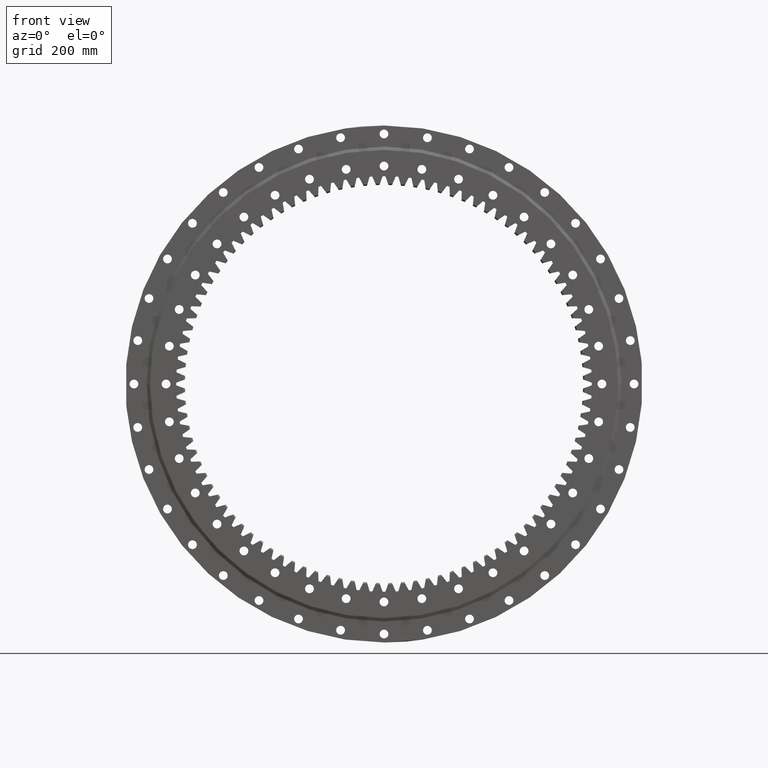
[diagram: clean part render]
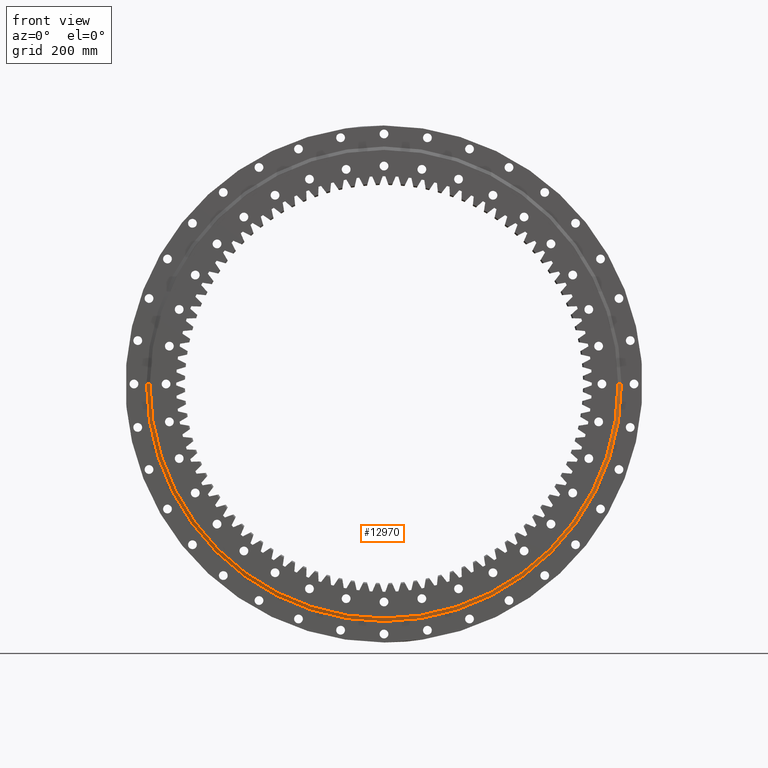
[diagram: same view with one face highlighted and labeled with its STEP entity id]
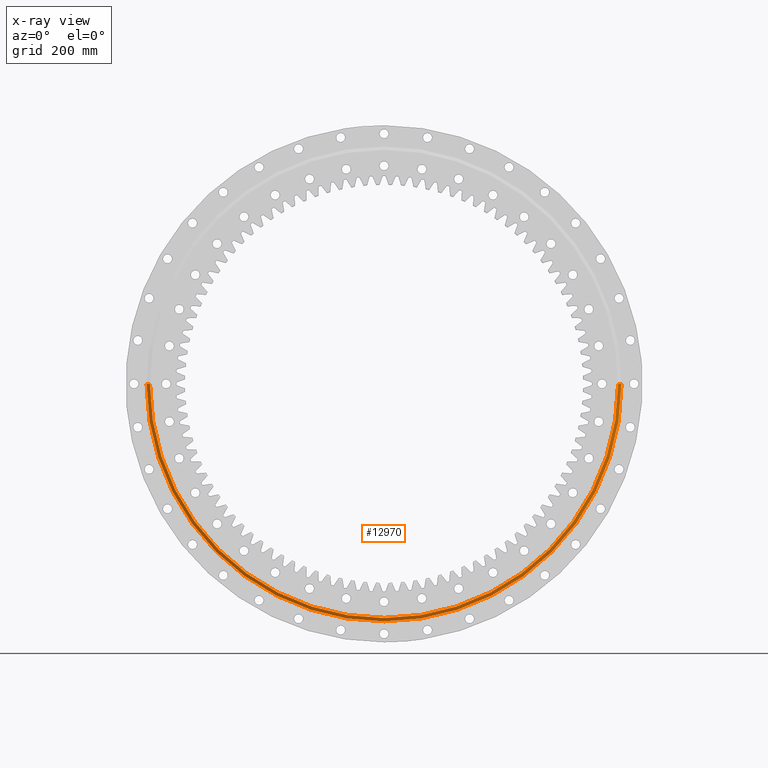
[diagram: x-ray of the same camera — body ghosted, the highlighted face saturated]
A machine part, front view. The second image highlights one B-rep face of the part: STEP entity #12970.
The next image is the same camera in x-ray: the body ghosted, the highlighted face saturated — about 0% of this face is hidden behind the body in this view.
In plain terms, the highlighted conical surface has half-angle 63.206 deg.
Its self-contained STEP definition (entity closure, byte-faithful):
#834 = CARTESIAN_POINT ( 'NONE',  ( 702.7500000000000000, -42.00000000000026300, 8.606205381008023300E-014 ) ) ;
#892 = CIRCLE ( 'NONE', #29205, 692.7500000000000000 ) ;
#1788 = DIRECTION ( 'NONE',  ( 0.8926347946143782200, 0.4507805712802479500, 1.093162344032053300E-016 ) ) ;
#2566 = CARTESIAN_POINT ( 'NONE',  ( -1.153259416591333400E-014, -42.00000000000013500, 0.0000000000000000000 ) ) ;
#2650 = DIRECTION ( 'NONE',  ( 1.836909530733565900E-016, 1.000000000000000000, -0.0000000000000000000 ) ) ;
#2682 = DIRECTION ( 'NONE',  ( -1.000000000000000000, 1.876043887217891800E-016, 0.0000000000000000000 ) ) ;
#2723 = EDGE_CURVE ( 'NONE', #7086, #17983, #14469, .T. ) ;
#2913 = CARTESIAN_POINT ( 'NONE',  ( 692.7500000000000000, -47.05000000000011800, 8.544973041050655700E-014 ) ) ;
#3383 = ORIENTED_EDGE ( 'NONE', *, *, #2723, .T. ) ;
#4254 = EDGE_CURVE ( 'NONE', #21430, #17983, #19643, .T. ) ;
#7086 = VERTEX_POINT ( 'NONE', #10377 ) ;
#9559 = ORIENTED_EDGE ( 'NONE', *, *, #19562, .F. ) ;
#10377 = CARTESIAN_POINT ( 'NONE',  ( -692.7500000000000000, -47.04999999999986900, 0.0000000000000000000 ) ) ;
#12432 = CARTESIAN_POINT ( 'NONE',  ( -1.246023347893375900E-014, -47.04999999999999700, 0.0000000000000000000 ) ) ;
#12970 = ADVANCED_FACE ( 'NONE', ( #28467 ), #27747, .T. ) ;
#13168 = CARTESIAN_POINT ( 'NONE',  ( -692.7500000000000000, -47.04999999999986900, 0.0000000000000000000 ) ) ;
#13317 = CARTESIAN_POINT ( 'NONE',  ( -702.7500000000000000, -42.00000000000000000, 0.0000000000000000000 ) ) ;
#13598 = DIRECTION ( 'NONE',  ( -0.8926347946143781100, 0.4507805712802482300, 0.0000000000000000000 ) ) ;
#14469 = LINE ( 'NONE', #13168, #26519 ) ;
#14673 = DIRECTION ( 'NONE',  ( -1.000000000000000000, 1.802960523570265200E-016, 0.0000000000000000000 ) ) ;
#15806 = DIRECTION ( 'NONE',  ( -1.000000000000000000, 1.802960523570265200E-016, 0.0000000000000000000 ) ) ;
#16372 = CARTESIAN_POINT ( 'NONE',  ( -1.246023347893375900E-014, -47.04999999999999700, 0.0000000000000000000 ) ) ;
#17983 = VERTEX_POINT ( 'NONE', #13317 ) ;
#18394 = VERTEX_POINT ( 'NONE', #2913 ) ;
#19322 = AXIS2_PLACEMENT_3D ( 'NONE', #16372, #20027, #15806 ) ;
#19562 = EDGE_CURVE ( 'NONE', #18394, #21430, #22098, .T. ) ;
#19643 = CIRCLE ( 'NONE', #22557, 702.7500000000000000 ) ;
#20027 = DIRECTION ( 'NONE',  ( 1.836909530733565900E-016, 1.000000000000000000, -0.0000000000000000000 ) ) ;
#21430 = VERTEX_POINT ( 'NONE', #834 ) ;
#21661 = ORIENTED_EDGE ( 'NONE', *, *, #25867, .T. ) ;
#21715 = EDGE_LOOP ( 'NONE', ( #9559, #21661, #3383, #23133 ) ) ;
#22098 = LINE ( 'NONE', #28828, #26744 ) ;
#22557 = AXIS2_PLACEMENT_3D ( 'NONE', #2566, #2650, #2682 ) ;
#23133 = ORIENTED_EDGE ( 'NONE', *, *, #4254, .F. ) ;
#25867 = EDGE_CURVE ( 'NONE', #18394, #7086, #892, .T. ) ;
#26519 = VECTOR ( 'NONE', #13598, 1000.000000000000100 ) ;
#26744 = VECTOR ( 'NONE', #1788, 1000.000000000000000 ) ;
#27747 = CONICAL_SURFACE ( 'NONE', #19322, 692.7500000000000000, 1.103156723031679000 ) ;
#28273 = DIRECTION ( 'NONE',  ( 1.836909530733565900E-016, 1.000000000000000000, -0.0000000000000000000 ) ) ;
#28467 = FACE_OUTER_BOUND ( 'NONE', #21715, .T. ) ;
#28828 = CARTESIAN_POINT ( 'NONE',  ( 692.7500000000000000, -47.05000000000011800, 8.483740701093288100E-014 ) ) ;
#29205 = AXIS2_PLACEMENT_3D ( 'NONE', #12432, #28273, #14673 ) ;